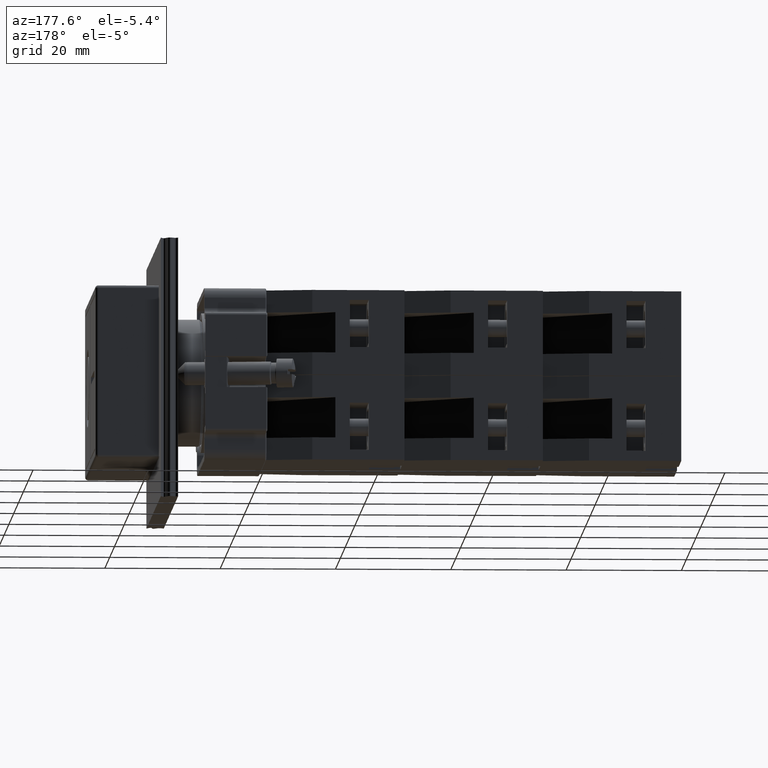
[diagram: clean part render]
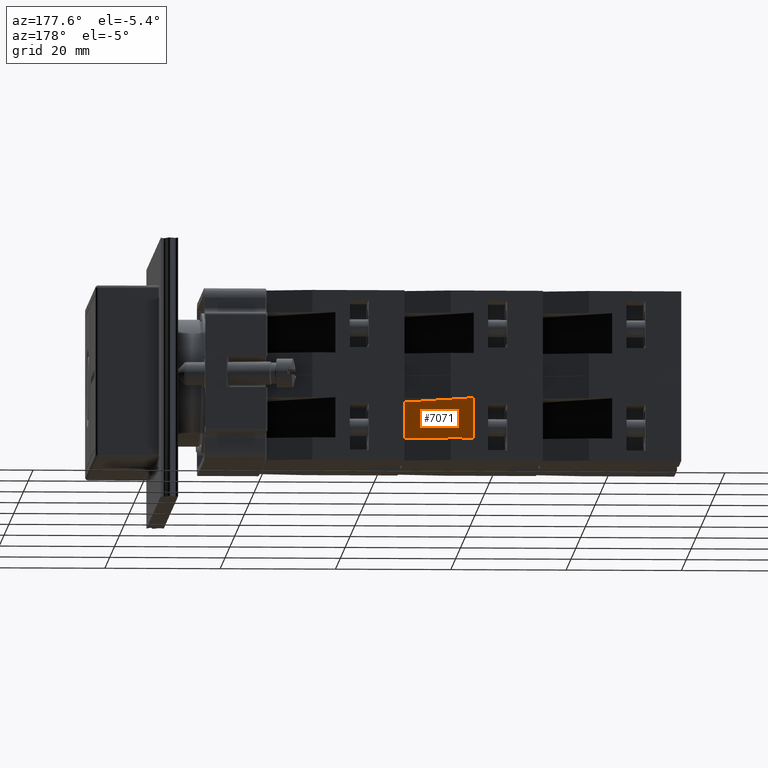
[diagram: same view with one face highlighted and labeled with its STEP entity id]
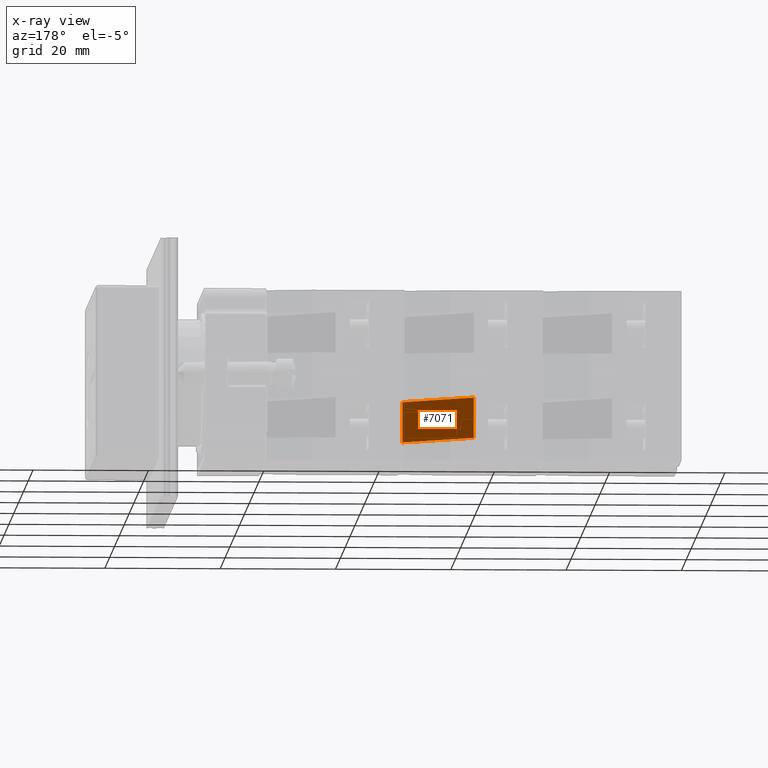
[diagram: x-ray of the same camera — body ghosted, the highlighted face saturated]
A machine part, auxiliary view. The second image highlights one B-rep face of the part: STEP entity #7071.
The next image is the same camera in x-ray: the body ghosted, the highlighted face saturated — about 0% of this face is hidden behind the body in this view.
In plain terms, the highlighted face is a freeform B-spline surface patch.
Its self-contained STEP definition (entity closure, byte-faithful):
#7016=CARTESIAN_POINT('',(-44.936741828918457,11.797073323279610,10.850000000000000));
#7017=VERTEX_POINT('',#7016);
#7024=CARTESIAN_POINT('',(-35.936741828918450,-0.202926676720384,10.850000000000000));
#7025=VERTEX_POINT('',#7024);
#7026=CARTESIAN_POINT('',(-35.936741828918450,-0.202926676720384,10.850000000000000));
#7027=DIRECTION('',(-0.600000000000000,0.800000000000000,0.0));
#7028=VECTOR('',#7027,15.0);
#7029=LINE('',#7026,#7028);
#7030=EDGE_CURVE('',#7025,#7017,#7029,.T.);
#7041=CARTESIAN_POINT('',(-44.936741828918464,11.797073323279616,3.850000000000000));
#7042=CARTESIAN_POINT('',(-44.936741828918464,11.797073323279616,10.850000000000001));
#7043=CARTESIAN_POINT('',(-35.936741828918443,-0.202926676720384,3.850000000000000));
#7044=CARTESIAN_POINT('',(-35.936741828918450,-0.202926676720384,10.850000000000001));
#7045=B_SPLINE_SURFACE_WITH_KNOTS('',1,1,((#7041,#7043),(#7042,#7044)),.UNSPECIFIED.,.F.,.F.,.U.,(2,2),(2,2),(0.0,7.000000000000002),(0.0,15.000000000000012),.UNSPECIFIED.);
#7046=CARTESIAN_POINT('',(-44.936741828918457,11.797073323279610,3.850000000000001));
#7047=VERTEX_POINT('',#7046);
#7048=CARTESIAN_POINT('',(-35.936741828918450,-0.202926676720384,3.850000000000001));
#7049=VERTEX_POINT('',#7048);
#7050=CARTESIAN_POINT('',(-44.936741828918457,11.797073323279610,3.850000000000001));
#7051=DIRECTION('',(0.600000000000000,-0.800000000000000,0.0));
#7052=VECTOR('',#7051,15.0);
#7053=LINE('',#7050,#7052);
#7054=EDGE_CURVE('',#7047,#7049,#7053,.T.);
#7055=ORIENTED_EDGE('',*,*,#7054,.T.);
#7056=CARTESIAN_POINT('',(-35.936741828918450,-0.202926676720384,10.850000000000000));
#7057=DIRECTION('',(0.0,0.0,-1.0));
#7058=VECTOR('',#7057,6.999999999999999);
#7059=LINE('',#7056,#7058);
#7060=EDGE_CURVE('',#7025,#7049,#7059,.T.);
#7061=ORIENTED_EDGE('',*,*,#7060,.F.);
#7062=ORIENTED_EDGE('',*,*,#7030,.T.);
#7063=CARTESIAN_POINT('',(-44.936741828918457,11.797073323279610,3.850000000000001));
#7064=DIRECTION('',(0.0,0.0,1.0));
#7065=VECTOR('',#7064,6.999999999999999);
#7066=LINE('',#7063,#7065);
#7067=EDGE_CURVE('',#7047,#7017,#7066,.T.);
#7068=ORIENTED_EDGE('',*,*,#7067,.F.);
#7069=EDGE_LOOP('',(#7055,#7061,#7062,#7068));
#7070=FACE_OUTER_BOUND('',#7069,.T.);
#7071=ADVANCED_FACE('',(#7070),#7045,.F.);